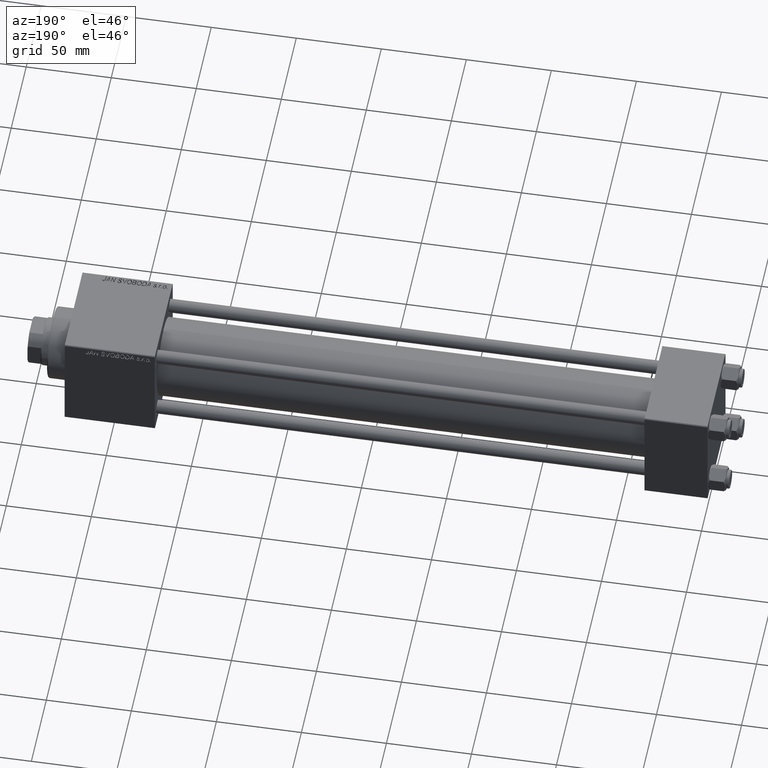
[diagram: clean part render]
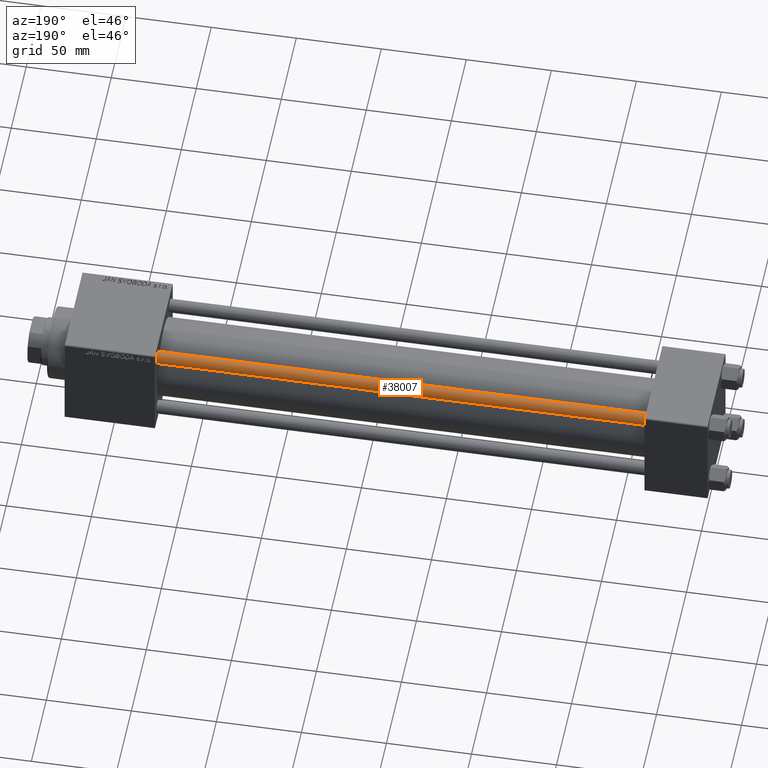
[diagram: same view with one face highlighted and labeled with its STEP entity id]
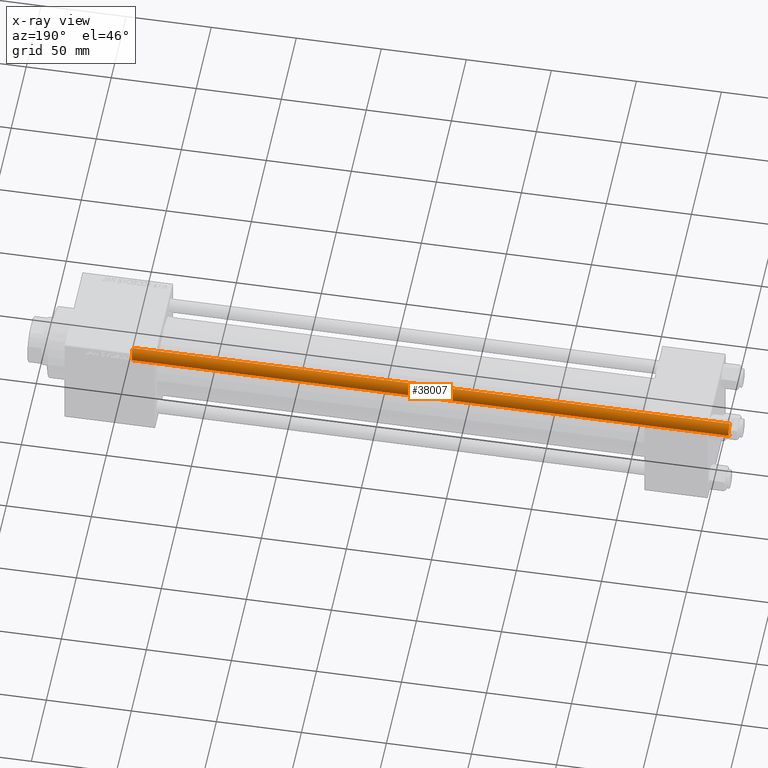
[diagram: x-ray of the same camera — body ghosted, the highlighted face saturated]
A machine part, auxiliary view. The second image highlights one B-rep face of the part: STEP entity #38007.
The next image is the same camera in x-ray: the body ghosted, the highlighted face saturated — about 0% of this face is hidden behind the body in this view.
In plain terms, the highlighted cylindrical surface (edge-blend (fillet) strip) has radius 4 mm, axis along (-1, 0, 0).
Its self-contained STEP definition (entity closure, byte-faithful):
#1676 = DIRECTION ( 'NONE',  ( 0.000000000000000000, 0.000000000000000000, -1.000000000000000000 ) ) ;
#2884 = ORIENTED_EDGE ( 'NONE', *, *, #26871, .T. ) ;
#5252 = DIRECTION ( 'NONE',  ( 1.000000000000000000, 0.000000000000000000, 0.000000000000000000 ) ) ;
#5486 = CARTESIAN_POINT ( 'NONE',  ( 0.000000000000000000, 0.000000000000000000, 351.5000000000000000 ) ) ;
#6367 = CYLINDRICAL_SURFACE ( 'NONE', #11940, 4.000000000000000000 ) ;
#6617 = CARTESIAN_POINT ( 'NONE',  ( 0.000000000000000000, 0.000000000000000000, 352.0000000000000000 ) ) ;
#9329 = EDGE_CURVE ( 'NONE', #26431, #10538, #40044, .T. ) ;
#9593 = DIRECTION ( 'NONE',  ( -0.000000000000000000, -0.000000000000000000, -1.000000000000000000 ) ) ;
#10429 = ORIENTED_EDGE ( 'NONE', *, *, #24760, .T. ) ;
#10538 = VERTEX_POINT ( 'NONE', #10582 ) ;
#10582 = CARTESIAN_POINT ( 'NONE',  ( -4.000000000000000000, 0.000000000000000000, 0.5000000000000004441 ) ) ;
#11940 = AXIS2_PLACEMENT_3D ( 'NONE', #6617, #30224, #37587 ) ;
#13311 = VERTEX_POINT ( 'NONE', #26226 ) ;
#14761 = CARTESIAN_POINT ( 'NONE',  ( 4.000000000000000000, 4.898587196589412829E-16, 0.5000000000000004441 ) ) ;
#20945 = VECTOR ( 'NONE', #9593, 1000.000000000000000 ) ;
#20966 = DIRECTION ( 'NONE',  ( 1.000000000000000000, 0.000000000000000000, 0.000000000000000000 ) ) ;
#22115 = FACE_OUTER_BOUND ( 'NONE', #33616, .T. ) ;
#24570 = AXIS2_PLACEMENT_3D ( 'NONE', #5486, #1676, #20966 ) ;
#24760 = EDGE_CURVE ( 'NONE', #26431, #13311, #43994, .T. ) ;
#24989 = DIRECTION ( 'NONE',  ( -0.000000000000000000, -0.000000000000000000, -1.000000000000000000 ) ) ;
#26226 = CARTESIAN_POINT ( 'NONE',  ( 4.000000000000000000, 4.898587196589412829E-16, 351.5000000000000000 ) ) ;
#26431 = VERTEX_POINT ( 'NONE', #41580 ) ;
#26871 = EDGE_CURVE ( 'NONE', #13311, #41778, #40178, .T. ) ;
#27331 = CIRCLE ( 'NONE', #33820, 4.000000000000000000 ) ;
#28903 = CARTESIAN_POINT ( 'NONE',  ( -4.000000000000000000, 0.000000000000000000, 352.0000000000000000 ) ) ;
#30224 = DIRECTION ( 'NONE',  ( -0.000000000000000000, -0.000000000000000000, -1.000000000000000000 ) ) ;
#33304 = ORIENTED_EDGE ( 'NONE', *, *, #33588, .T. ) ;
#33588 = EDGE_CURVE ( 'NONE', #41778, #10538, #27331, .T. ) ;
#33616 = EDGE_LOOP ( 'NONE', ( #10429, #2884, #33304, #42740 ) ) ;
#33820 = AXIS2_PLACEMENT_3D ( 'NONE', #40532, #35971, #5252 ) ;
#35971 = DIRECTION ( 'NONE',  ( -0.000000000000000000, -0.000000000000000000, 1.000000000000000000 ) ) ;
#36650 = CARTESIAN_POINT ( 'NONE',  ( 4.000000000000000000, 4.898587196589412829E-16, 352.0000000000000000 ) ) ;
#37587 = DIRECTION ( 'NONE',  ( -1.000000000000000000, 0.000000000000000000, 0.000000000000000000 ) ) ;
#38007 = ADVANCED_FACE ( 'NONE', ( #22115 ), #6367, .T. ) ;
#40044 = LINE ( 'NONE', #28903, #20945 ) ;
#40178 = LINE ( 'NONE', #36650, #44875 ) ;
#40532 = CARTESIAN_POINT ( 'NONE',  ( 0.000000000000000000, 0.000000000000000000, 0.5000000000000004441 ) ) ;
#41580 = CARTESIAN_POINT ( 'NONE',  ( -4.000000000000000000, 0.000000000000000000, 351.5000000000000000 ) ) ;
#41778 = VERTEX_POINT ( 'NONE', #14761 ) ;
#42740 = ORIENTED_EDGE ( 'NONE', *, *, #9329, .F. ) ;
#43994 = CIRCLE ( 'NONE', #24570, 4.000000000000000000 ) ;
#44875 = VECTOR ( 'NONE', #24989, 1000.000000000000000 ) ;